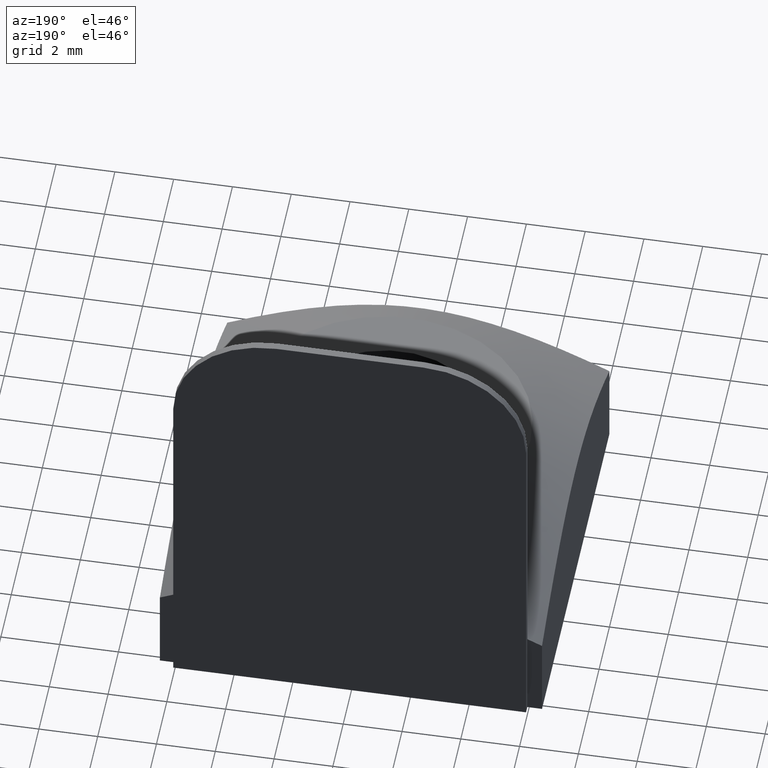
[diagram: clean part render]
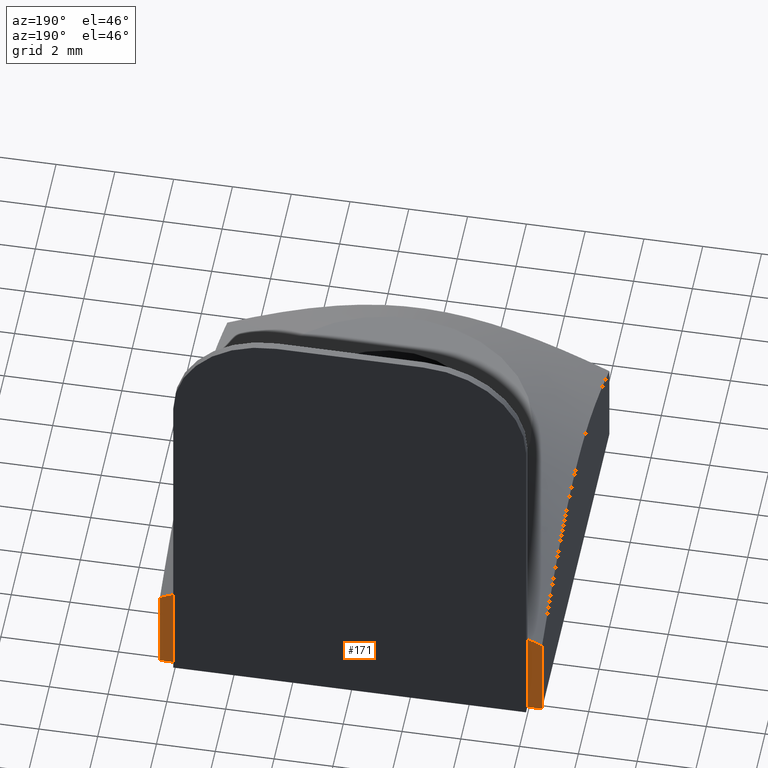
[diagram: same view with one face highlighted and labeled with its STEP entity id]
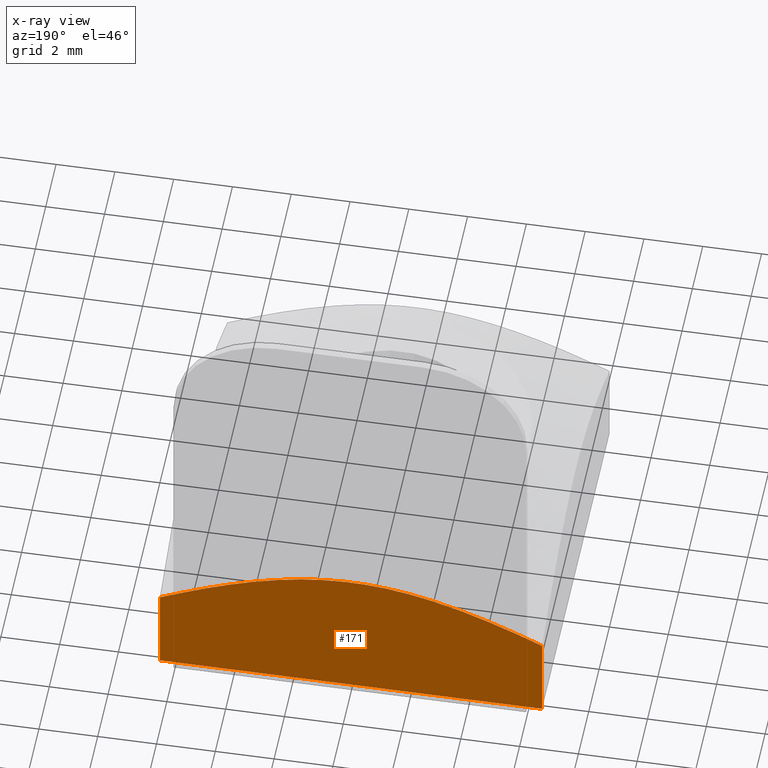
[diagram: x-ray of the same camera — body ghosted, the highlighted face saturated]
A machine part, auxiliary view. The second image highlights one B-rep face of the part: STEP entity #171.
The next image is the same camera in x-ray: the body ghosted, the highlighted face saturated — about 0% of this face is hidden behind the body in this view.
In plain terms, the highlighted planar face has unit normal (0, -1, 0).
Its self-contained STEP definition (entity closure, byte-faithful):
#7=CARTESIAN_POINT('',(-6.499999999973852,6.499999999974079,0.0));
#8=VERTEX_POINT('',#7);
#25=CARTESIAN_POINT('',(-6.499999999973852,6.499999999974079,3.034437679605066));
#26=VERTEX_POINT('',#25);
#43=CARTESIAN_POINT('',(-6.499999999973852,6.499999999974079,3.034437679605066));
#44=DIRECTION('',(0.0,0.0,-1.0));
#45=VECTOR('',#44,3.034437679605066);
#46=LINE('',#43,#45);
#47=EDGE_CURVE('',#26,#8,#46,.T.);
#98=CARTESIAN_POINT('',(6.499999999974079,6.499999999974079,0.0));
#99=VERTEX_POINT('',#98);
#106=CARTESIAN_POINT('',(6.499999999974079,6.499999999974079,3.034437679604906));
#107=VERTEX_POINT('',#106);
#108=CARTESIAN_POINT('',(6.499999999974079,6.499999999974079,3.034437679604906));
#109=DIRECTION('',(0.0,0.0,-1.0));
#110=VECTOR('',#109,3.034437679604906);
#111=LINE('',#108,#110);
#112=EDGE_CURVE('',#107,#99,#111,.T.);
#140=CARTESIAN_POINT('',(6.499999999974079,6.499999999974079,6.0));
#141=DIRECTION('',(0.0,-1.0,0.0));
#142=DIRECTION('',(-1.0,0.0,0.0));
#143=AXIS2_PLACEMENT_3D('',#140,#141,#142);
#144=PLANE('',#143);
#145=ORIENTED_EDGE('',*,*,#47,.F.);
#146=CARTESIAN_POINT('',(-6.499999999973852,6.499999999974079,3.034437679605066));
#147=CARTESIAN_POINT('',(-6.048409974867354,6.499999999974079,3.258029609546206));
#148=CARTESIAN_POINT('',(-5.174177651177615,6.499999999972715,3.668900488673024));
#149=CARTESIAN_POINT('',(-3.827364189701939,6.499999999976353,4.209600242582472));
#150=CARTESIAN_POINT('',(-2.551471572317269,6.499999999962711,4.605479998874186));
#151=CARTESIAN_POINT('',(-1.288091550251011,6.499999999977263,4.855365513273293));
#152=CARTESIAN_POINT('',(-0.091791976899913,6.499999999974534,4.946072576401746));
#153=CARTESIAN_POINT('',(1.114697758099283,6.499999999973170,4.877442321284664));
#154=CARTESIAN_POINT('',(2.325183673445054,6.499999999974989,4.659603356991500));
#155=CARTESIAN_POINT('',(3.581020279306813,6.499999999974079,4.294954268034344));
#156=CARTESIAN_POINT('',(4.990047889131802,6.499999999974534,3.753273584885147));
#157=CARTESIAN_POINT('',(5.963475184197932,6.499999999974079,3.300082650377685));
#158=CARTESIAN_POINT('',(6.499999999974079,6.499999999974079,3.034437679604906));
#159=B_SPLINE_CURVE_WITH_KNOTS('',3,(#146,#147,#148,#149,#150,#151,#152,#153,#154,#155,#156,#157,#158),.UNSPECIFIED.,.F.,.U.,(4,1,1,1,1,1,1,1,1,1,4),(0.0,1.511893515637792,2.896751494896321,4.351745284787702,5.514534619491342,6.754837055234381,7.943140209596928,9.132372879845162,10.438866434292001,11.861784734333828,13.658133343956067),.UNSPECIFIED.);
#160=EDGE_CURVE('',#26,#107,#159,.T.);
#161=ORIENTED_EDGE('',*,*,#160,.T.);
#162=ORIENTED_EDGE('',*,*,#112,.T.);
#163=CARTESIAN_POINT('',(6.499999999974143,6.499999999974079,0.0));
#164=DIRECTION('',(-1.0,0.0,0.0));
#165=VECTOR('',#164,12.999999999947995);
#166=LINE('',#163,#165);
#167=EDGE_CURVE('',#99,#8,#166,.T.);
#168=ORIENTED_EDGE('',*,*,#167,.T.);
#169=EDGE_LOOP('',(#145,#161,#162,#168));
#170=FACE_OUTER_BOUND('',#169,.T.);
#171=ADVANCED_FACE('',(#170),#144,.F.);